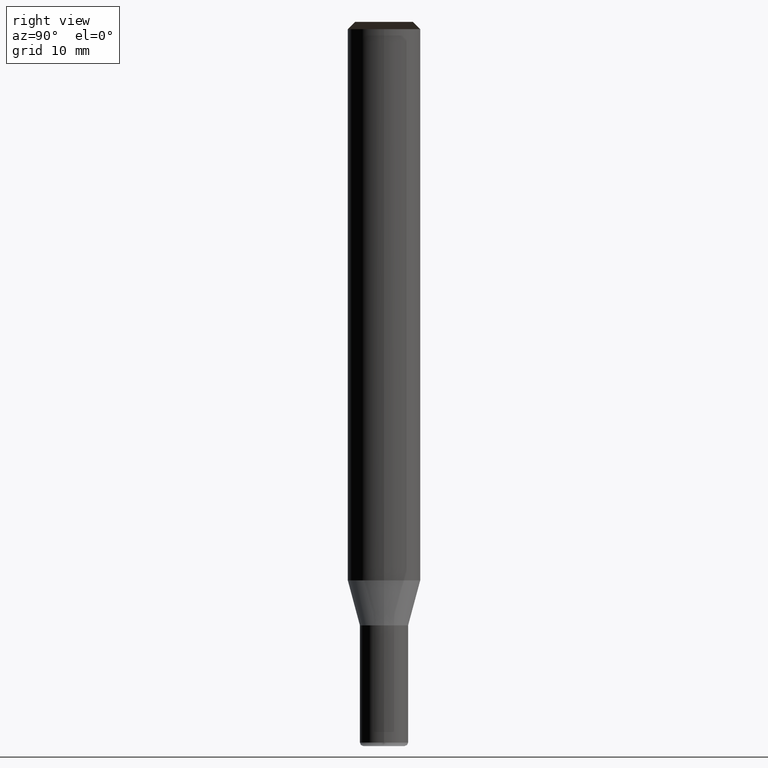
[diagram: clean part render]
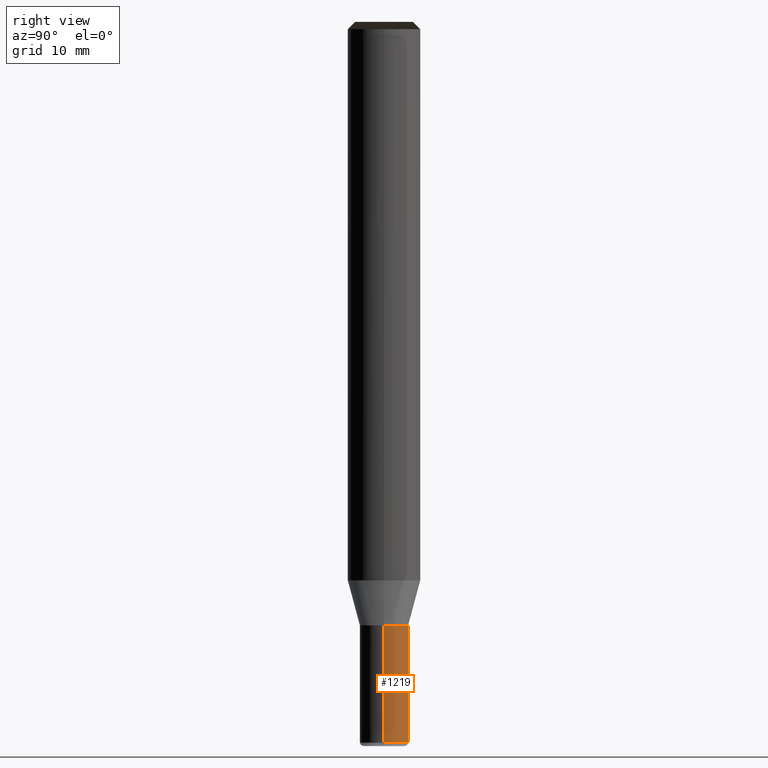
[diagram: same view with one face highlighted and labeled with its STEP entity id]
A machine part, right view. The second image highlights one B-rep face of the part: STEP entity #1219.
In plain terms, the highlighted face is a freeform B-spline surface patch.
Its self-contained STEP definition (entity closure, byte-faithful):
#1101=CARTESIAN_POINT('',(2.0,0.0,-13.432050807569));
#1102=CARTESIAN_POINT('',(2.0,2.0,-13.432050807569));
#1103=CARTESIAN_POINT('',(0.0,2.0,-13.432050807569));
#1104=CARTESIAN_POINT('',(-2.0,2.0,-13.432050807569));
#1105=CARTESIAN_POINT('',(-2.0,0.0,-13.432050807569));
#1106=CARTESIAN_POINT('',(2.0,0.0,-3.732050807569));
#1107=CARTESIAN_POINT('',(2.0,2.0,-3.732050807569));
#1108=CARTESIAN_POINT('',(0.0,2.0,-3.732050807569));
#1109=CARTESIAN_POINT('',(-2.0,2.0,-3.732050807569));
#1110=CARTESIAN_POINT('',(-2.0,0.0,-3.732050807569));
#1200=(
BOUNDED_SURFACE()
B_SPLINE_SURFACE(1,2,(
(#1101,#1102,#1103,#1104,#1105),
(#1106,#1107,#1108,#1109,#1110)
), .UNSPECIFIED.,.F.,.F.,.F.)
B_SPLINE_SURFACE_WITH_KNOTS((2,2),(3,2,3),(
0.0,1.0),(
0.0,0.5,1.0), .UNSPECIFIED.)
GEOMETRIC_REPRESENTATION_ITEM()
RATIONAL_B_SPLINE_SURFACE(((1.0,0.707106781187,1.0,0.707106781187,1.0),
(1.0,0.707106781187,1.0,0.707106781187,1.0)
))
REPRESENTATION_ITEM('')
SURFACE()
);
#1201=(
BOUNDED_CURVE()
B_SPLINE_CURVE(2,(#1106,#1107,#1108,#1109,#1110),.UNSPECIFIED.,.F.,.F.)
B_SPLINE_CURVE_WITH_KNOTS((3,2,3),
(0.0,0.5,1.0),.UNSPECIFIED.)
CURVE()
GEOMETRIC_REPRESENTATION_ITEM()
RATIONAL_B_SPLINE_CURVE((1.0,0.707106781187,1.0,0.707106781187,1.0))
REPRESENTATION_ITEM('')
);
#1202=(
BOUNDED_CURVE()
B_SPLINE_CURVE(1,(#1110,#1105),.UNSPECIFIED.,.F.,.F.)
B_SPLINE_CURVE_WITH_KNOTS((2,2),
(0.0,1.0),.UNSPECIFIED.)
CURVE()
GEOMETRIC_REPRESENTATION_ITEM()
RATIONAL_B_SPLINE_CURVE((1.0,1.0))
REPRESENTATION_ITEM('')
);
#1203=(
BOUNDED_CURVE()
B_SPLINE_CURVE(2,(#1105,#1104,#1103,#1102,#1101),.UNSPECIFIED.,.F.,.F.)
B_SPLINE_CURVE_WITH_KNOTS((3,2,3),
(0.0,0.5,1.0),.UNSPECIFIED.)
CURVE()
GEOMETRIC_REPRESENTATION_ITEM()
RATIONAL_B_SPLINE_CURVE((1.0,0.707106781187,1.0,0.707106781187,1.0))
REPRESENTATION_ITEM('')
);
#1204=(
BOUNDED_CURVE()
B_SPLINE_CURVE(1,(#1101,#1106),.UNSPECIFIED.,.F.,.F.)
B_SPLINE_CURVE_WITH_KNOTS((2,2),
(0.0,1.0),.UNSPECIFIED.)
CURVE()
GEOMETRIC_REPRESENTATION_ITEM()
RATIONAL_B_SPLINE_CURVE((1.0,1.0))
REPRESENTATION_ITEM('')
);
#1205=VERTEX_POINT('',#1101);
#1206=VERTEX_POINT('',#1105);
#1207=VERTEX_POINT('',#1106);
#1208=VERTEX_POINT('',#1110);
#1209=EDGE_CURVE('',#1207,#1208,#1201,.T.);
#1210=EDGE_CURVE('',#1208,#1206,#1202,.T.);
#1211=EDGE_CURVE('',#1206,#1205,#1203,.T.);
#1212=EDGE_CURVE('',#1205,#1207,#1204,.T.);
#1213=ORIENTED_EDGE('',*,*,#1209,.T.);
#1214=ORIENTED_EDGE('',*,*,#1210,.T.);
#1215=ORIENTED_EDGE('',*,*,#1211,.T.);
#1216=ORIENTED_EDGE('',*,*,#1212,.T.);
#1217=EDGE_LOOP('',(#1213,#1214,#1215,#1216));
#1218=FACE_OUTER_BOUND('',#1217,.T.);
#1219=ADVANCED_FACE('',(#1218),#1200,.T.);